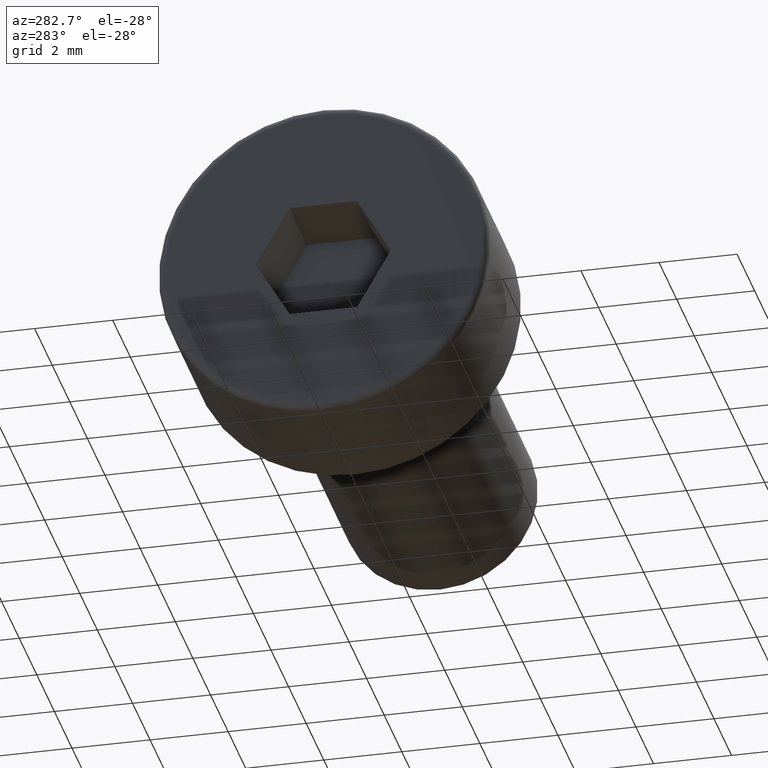
[diagram: clean part render]
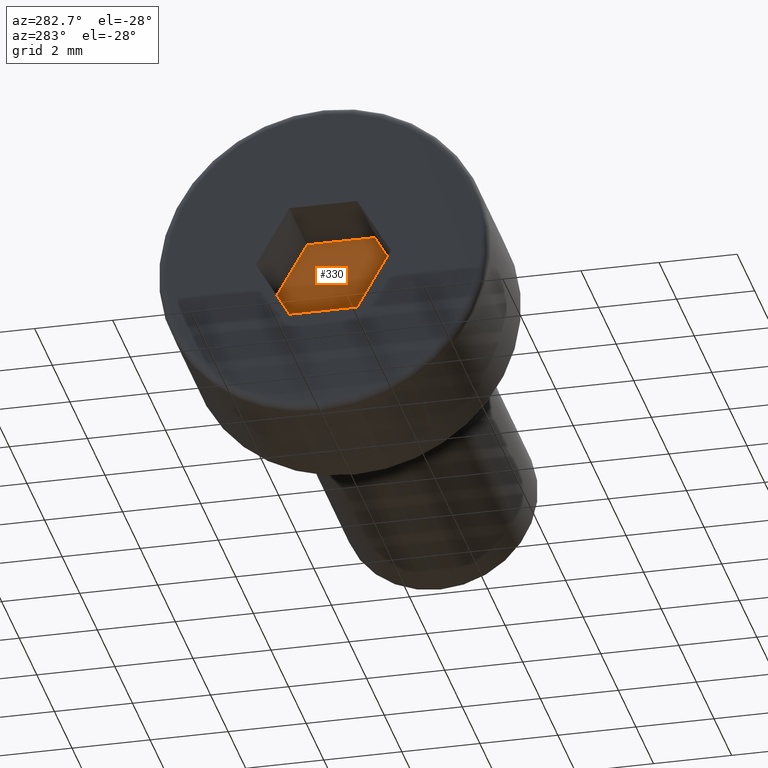
[diagram: same view with one face highlighted and labeled with its STEP entity id]
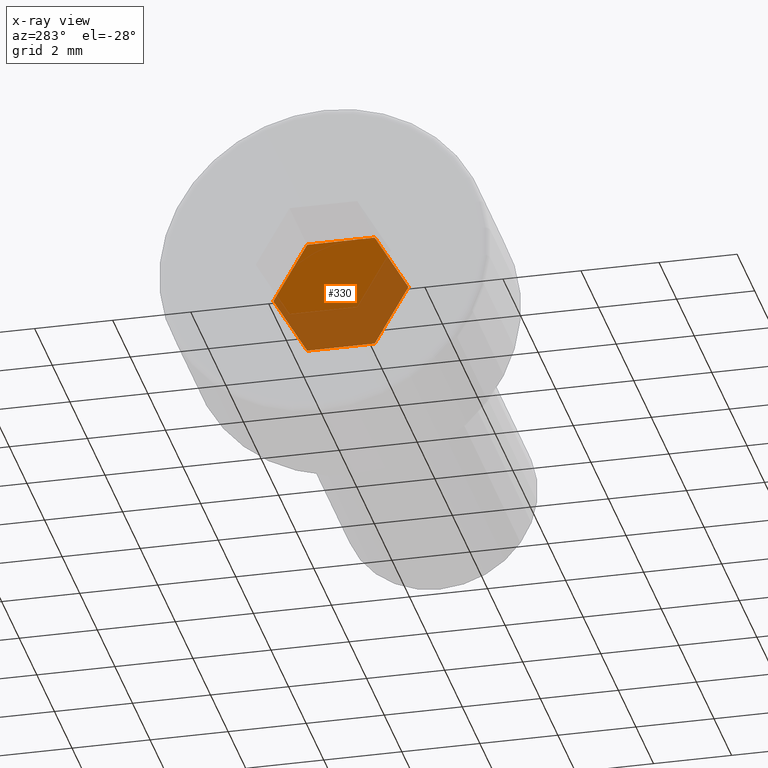
[diagram: x-ray of the same camera — body ghosted, the highlighted face saturated]
A machine part, auxiliary view. The second image highlights one B-rep face of the part: STEP entity #330.
The next image is the same camera in x-ray: the body ghosted, the highlighted face saturated — about 46% of this face is hidden behind the body in this view.
In plain terms, the highlighted planar face has unit normal (1, 0, 0).
Its self-contained STEP definition (entity closure, byte-faithful):
#33 = DIRECTION ( 'NONE',  ( -0.0000000000000000000, -0.5000000000000003300, -0.8660254037844383700 ) ) ;
#49 = EDGE_CURVE ( 'NONE', #685, #304, #72, .T. ) ;
#55 = DIRECTION ( 'NONE',  ( 1.000000000000000000, 0.0000000000000000000, -0.0000000000000000000 ) ) ;
#67 = DIRECTION ( 'NONE',  ( 0.0000000000000000000, -0.4999999999999998900, 0.8660254037844386000 ) ) ;
#72 = LINE ( 'NONE', #791, #98 ) ;
#78 = VERTEX_POINT ( 'NONE', #238 ) ;
#88 = DIRECTION ( 'NONE',  ( -0.0000000000000000000, 1.000000000000000000, 8.763501825966792400E-016 ) ) ;
#97 = LINE ( 'NONE', #133, #439 ) ;
#98 = VECTOR ( 'NONE', #733, 1000.000000000000000 ) ;
#113 = EDGE_CURVE ( 'NONE', #364, #685, #570, .T. ) ;
#133 = CARTESIAN_POINT ( 'NONE',  ( -1.800000000000000000, 1.732050807568872500, -3.579244311116258100E-017 ) ) ;
#160 = EDGE_CURVE ( 'NONE', #304, #78, #657, .T. ) ;
#165 = CARTESIAN_POINT ( 'NONE',  ( -1.800000000000000000, 0.8660254037844360400, -1.499999999999995300 ) ) ;
#183 = EDGE_CURVE ( 'NONE', #196, #252, #632, .T. ) ;
#196 = VERTEX_POINT ( 'NONE', #801 ) ;
#238 = CARTESIAN_POINT ( 'NONE',  ( -1.800000000000000000, -1.732050807568872500, 3.588059837047438300E-016 ) ) ;
#247 = CARTESIAN_POINT ( 'NONE',  ( -1.800000000000000000, -0.8660254037844362700, -1.499999999999995600 ) ) ;
#252 = VERTEX_POINT ( 'NONE', #660 ) ;
#303 = DIRECTION ( 'NONE',  ( -0.0000000000000000000, 0.4999999999999998300, -0.8660254037844387100 ) ) ;
#304 = VERTEX_POINT ( 'NONE', #538 ) ;
#311 = VECTOR ( 'NONE', #622, 1000.000000000000100 ) ;
#317 = CARTESIAN_POINT ( 'NONE',  ( -1.800000000000000000, 0.8660254037844367100, 1.499999999999996000 ) ) ;
#323 = VECTOR ( 'NONE', #88, 1000.000000000000000 ) ;
#330 = ADVANCED_FACE ( 'NONE', ( #774 ), #547, .F. ) ;
#339 = VECTOR ( 'NONE', #67, 1000.000000000000200 ) ;
#341 = EDGE_LOOP ( 'NONE', ( #726, #770, #492, #466, #610, #697 ) ) ;
#342 = EDGE_CURVE ( 'NONE', #252, #364, #97, .T. ) ;
#364 = VERTEX_POINT ( 'NONE', #694 ) ;
#369 = CARTESIAN_POINT ( 'NONE',  ( -1.800000000000000000, 0.0000000000000000000, 0.0000000000000000000 ) ) ;
#439 = VECTOR ( 'NONE', #303, 1000.000000000000000 ) ;
#466 = ORIENTED_EDGE ( 'NONE', *, *, #665, .T. ) ;
#475 = LINE ( 'NONE', #653, #311 ) ;
#492 = ORIENTED_EDGE ( 'NONE', *, *, #160, .T. ) ;
#538 = CARTESIAN_POINT ( 'NONE',  ( -1.800000000000000000, -0.8660254037844362700, -1.499999999999995600 ) ) ;
#547 = PLANE ( 'NONE',  #639 ) ;
#570 = LINE ( 'NONE', #165, #705 ) ;
#610 = ORIENTED_EDGE ( 'NONE', *, *, #183, .T. ) ;
#622 = DIRECTION ( 'NONE',  ( 0.0000000000000000000, 0.5000000000000011100, 0.8660254037844380400 ) ) ;
#632 = LINE ( 'NONE', #317, #323 ) ;
#637 = CARTESIAN_POINT ( 'NONE',  ( -1.800000000000000000, 0.8660254037844360400, -1.499999999999995300 ) ) ;
#639 = AXIS2_PLACEMENT_3D ( 'NONE', #369, #55, #648 ) ;
#648 = DIRECTION ( 'NONE',  ( -0.0000000000000000000, 0.0000000000000000000, -1.000000000000000000 ) ) ;
#653 = CARTESIAN_POINT ( 'NONE',  ( -1.800000000000000000, -1.732050807568872500, 3.588059837047438300E-016 ) ) ;
#657 = LINE ( 'NONE', #247, #339 ) ;
#660 = CARTESIAN_POINT ( 'NONE',  ( -1.800000000000000000, 0.8660254037844367100, 1.499999999999996000 ) ) ;
#665 = EDGE_CURVE ( 'NONE', #78, #196, #475, .T. ) ;
#685 = VERTEX_POINT ( 'NONE', #637 ) ;
#694 = CARTESIAN_POINT ( 'NONE',  ( -1.800000000000000000, 1.732050807568872500, -3.579244311116258100E-017 ) ) ;
#697 = ORIENTED_EDGE ( 'NONE', *, *, #342, .T. ) ;
#705 = VECTOR ( 'NONE', #33, 1000.000000000000100 ) ;
#726 = ORIENTED_EDGE ( 'NONE', *, *, #113, .T. ) ;
#733 = DIRECTION ( 'NONE',  ( 0.0000000000000000000, -1.000000000000000000, -1.251928832280969600E-016 ) ) ;
#770 = ORIENTED_EDGE ( 'NONE', *, *, #49, .T. ) ;
#774 = FACE_OUTER_BOUND ( 'NONE', #341, .T. ) ;
#791 = CARTESIAN_POINT ( 'NONE',  ( -1.800000000000000000, 0.8660254037844360400, -1.499999999999995300 ) ) ;
#801 = CARTESIAN_POINT ( 'NONE',  ( -1.800000000000000000, -0.8660254037844348200, 1.499999999999994400 ) ) ;